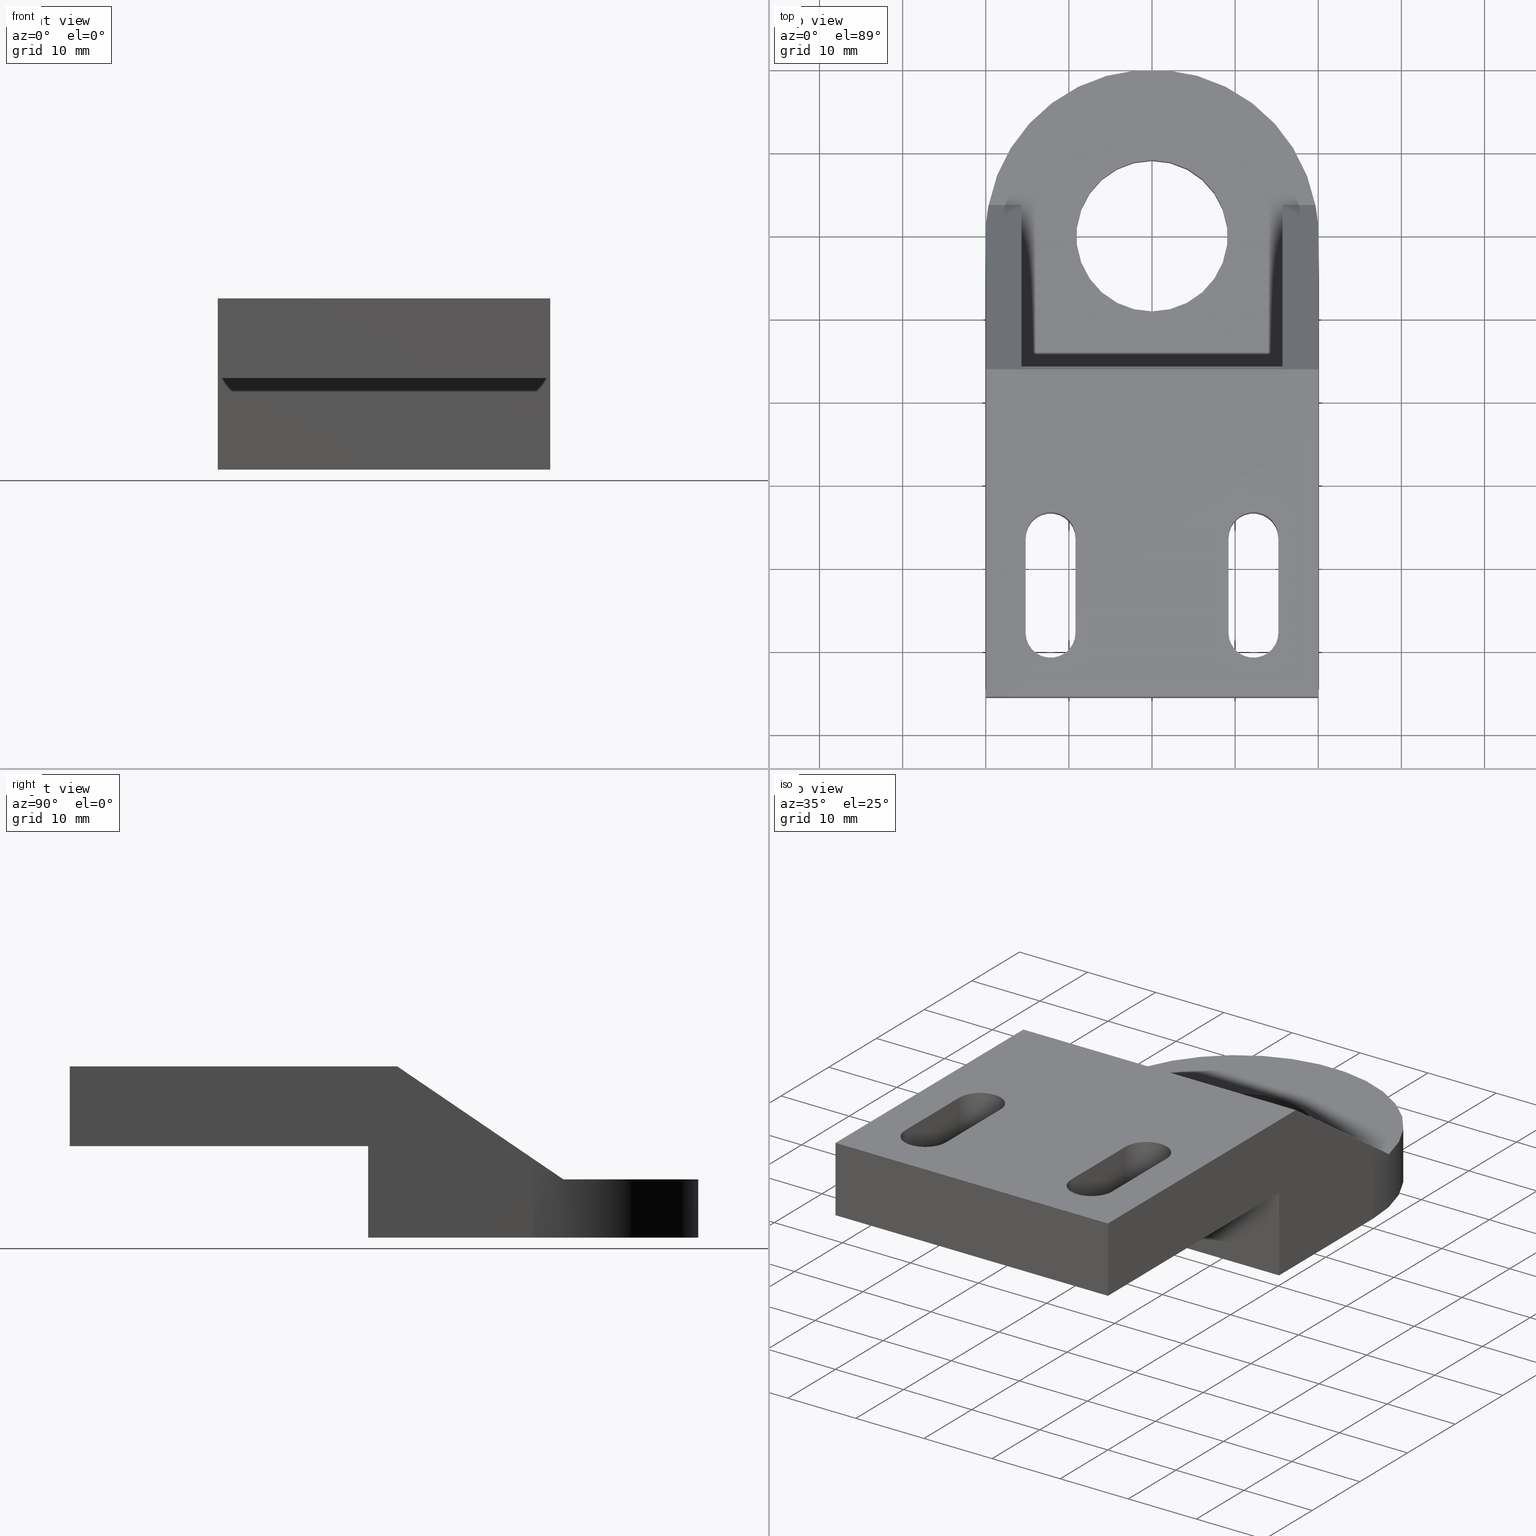
[diagram: canonical four-view strip — front | top / right | iso, engineering-drawing reading convention]
A machine part, canonical four-view strip (front | top / right | iso — engineering-drawing reading convention). The complete STEP part file that produces these views, byte-faithful:
ISO-10303-21;
HEADER;
/* Generated by software containing ST-Developer
 * from STEP Tools, Inc. (www.steptools.com) 
 */

FILE_DESCRIPTION(
/* description */ ('FERMAPORTA ASOLATO SENZA AGGANCIO'),
/* implementation_level */ '2;1');

FILE_NAME(
/* name */ 'C:\\Users\\Tecnico9\\Desktop\\CASYY0000001.stp',
/* time_stamp */ '2021-06-03T17:43:03+02:00',
/* author */ ('tecnico9'),
/* organization */ (''),
/* preprocessor_version */ 'ST-DEVELOPER v17.2',
/* originating_system */ 'Autodesk Inventor 2019',
/* authorisation */ '');

FILE_SCHEMA (('AUTOMOTIVE_DESIGN { 1 0 10303 214 3 1 1 }'));
ENDSEC;

DATA;
#10=MECHANICAL_DESIGN_GEOMETRIC_PRESENTATION_REPRESENTATION('',(#13),#743);
#11=SHAPE_REPRESENTATION_RELATIONSHIP('SRR','None',#750,#12);
#12=ADVANCED_BREP_SHAPE_REPRESENTATION('',(#14),#742);
#13=STYLED_ITEM('',(#759),#14);
#14=MANIFOLD_SOLID_BREP('None',#441);
#15=FACE_BOUND('',#68,.T.);
#16=FACE_BOUND('',#69,.T.);
#17=FACE_BOUND('',#71,.T.);
#18=FACE_BOUND('',#74,.T.);
#19=FACE_BOUND('',#75,.T.);
#20=FACE_BOUND('',#81,.T.);
#21=ELLIPSE('',#465,24.1859463324328,19.99999999992);
#22=ELLIPSE('',#467,24.1859463324328,19.99999999992);
#23=CIRCLE('',#464,19.99999999992);
#24=CIRCLE('',#466,19.99999999992);
#25=CIRCLE('',#470,2.99999999998818);
#26=CIRCLE('',#471,2.99999999998818);
#27=CIRCLE('',#472,2.99999999998818);
#28=CIRCLE('',#473,2.99999999998818);
#29=CIRCLE('',#475,9.09999999996353);
#30=CIRCLE('',#478,2.99999999998818);
#31=CIRCLE('',#479,2.99999999998818);
#32=CIRCLE('',#480,2.99999999998818);
#33=CIRCLE('',#481,2.99999999998818);
#34=CIRCLE('',#487,9.09999999996353);
#35=CYLINDRICAL_SURFACE('',#463,19.99999999992);
#36=CYLINDRICAL_SURFACE('',#488,9.09999999996353);
#37=CYLINDRICAL_SURFACE('',#489,2.99999999998818);
#38=CYLINDRICAL_SURFACE('',#491,2.99999999998818);
#39=CYLINDRICAL_SURFACE('',#493,2.99999999998818);
#40=CYLINDRICAL_SURFACE('',#495,2.99999999998818);
#41=FACE_OUTER_BOUND('',#63,.T.);
#42=FACE_OUTER_BOUND('',#64,.T.);
#43=FACE_OUTER_BOUND('',#65,.T.);
#44=FACE_OUTER_BOUND('',#66,.T.);
#45=FACE_OUTER_BOUND('',#67,.T.);
#46=FACE_OUTER_BOUND('',#70,.T.);
#47=FACE_OUTER_BOUND('',#72,.T.);
#48=FACE_OUTER_BOUND('',#73,.T.);
#49=FACE_OUTER_BOUND('',#76,.T.);
#50=FACE_OUTER_BOUND('',#77,.T.);
#51=FACE_OUTER_BOUND('',#78,.T.);
#52=FACE_OUTER_BOUND('',#79,.T.);
#53=FACE_OUTER_BOUND('',#80,.T.);
#54=FACE_OUTER_BOUND('',#82,.T.);
#55=FACE_OUTER_BOUND('',#83,.T.);
#56=FACE_OUTER_BOUND('',#84,.T.);
#57=FACE_OUTER_BOUND('',#85,.T.);
#58=FACE_OUTER_BOUND('',#86,.T.);
#59=FACE_OUTER_BOUND('',#87,.T.);
#60=FACE_OUTER_BOUND('',#88,.T.);
#61=FACE_OUTER_BOUND('',#89,.T.);
#62=FACE_OUTER_BOUND('',#90,.T.);
#63=EDGE_LOOP('',(#283,#284,#285,#286));
#64=EDGE_LOOP('',(#287,#288,#289,#290,#291,#292,#293));
#65=EDGE_LOOP('',(#294,#295,#296,#297,#298,#299));
#66=EDGE_LOOP('',(#300,#301,#302,#303,#304,#305,#306));
#67=EDGE_LOOP('',(#307,#308,#309,#310));
#68=EDGE_LOOP('',(#311,#312,#313,#314));
#69=EDGE_LOOP('',(#315,#316,#317,#318));
#70=EDGE_LOOP('',(#319,#320,#321,#322));
#71=EDGE_LOOP('',(#323));
#72=EDGE_LOOP('',(#324,#325,#326,#327));
#73=EDGE_LOOP('',(#328,#329,#330,#331));
#74=EDGE_LOOP('',(#332,#333,#334,#335));
#75=EDGE_LOOP('',(#336,#337,#338,#339));
#76=EDGE_LOOP('',(#340,#341,#342,#343,#344,#345,#346,#347,#348,#349));
#77=EDGE_LOOP('',(#350,#351,#352));
#78=EDGE_LOOP('',(#353,#354,#355,#356));
#79=EDGE_LOOP('',(#357,#358,#359));
#80=EDGE_LOOP('',(#360,#361,#362,#363,#364,#365));
#81=EDGE_LOOP('',(#366));
#82=EDGE_LOOP('',(#367,#368,#369,#370));
#83=EDGE_LOOP('',(#371,#372,#373,#374));
#84=EDGE_LOOP('',(#375,#376,#377,#378));
#85=EDGE_LOOP('',(#379,#380,#381,#382));
#86=EDGE_LOOP('',(#383,#384,#385,#386));
#87=EDGE_LOOP('',(#387,#388,#389,#390));
#88=EDGE_LOOP('',(#391,#392,#393,#394));
#89=EDGE_LOOP('',(#395,#396,#397,#398));
#90=EDGE_LOOP('',(#399,#400,#401,#402));
#91=LINE('',#621,#137);
#92=LINE('',#623,#138);
#93=LINE('',#625,#139);
#94=LINE('',#626,#140);
#95=LINE('',#630,#141);
#96=LINE('',#632,#142);
#97=LINE('',#634,#143);
#98=LINE('',#635,#144);
#99=LINE('',#637,#145);
#100=LINE('',#638,#146);
#101=LINE('',#643,#147);
#102=LINE('',#651,#148);
#103=LINE('',#652,#149);
#104=LINE('',#654,#150);
#105=LINE('',#656,#151);
#106=LINE('',#657,#152);
#107=LINE('',#659,#153);
#108=LINE('',#664,#154);
#109=LINE('',#667,#155);
#110=LINE('',#672,#156);
#111=LINE('',#675,#157);
#112=LINE('',#677,#158);
#113=LINE('',#681,#159);
#114=LINE('',#687,#160);
#115=LINE('',#690,#161);
#116=LINE('',#695,#162);
#117=LINE('',#698,#163);
#118=LINE('',#701,#164);
#119=LINE('',#703,#165);
#120=LINE('',#705,#166);
#121=LINE('',#707,#167);
#122=LINE('',#708,#168);
#123=LINE('',#711,#169);
#124=LINE('',#712,#170);
#125=LINE('',#715,#171);
#126=LINE('',#716,#172);
#127=LINE('',#718,#173);
#128=LINE('',#723,#174);
#129=LINE('',#725,#175);
#130=LINE('',#726,#176);
#131=LINE('',#728,#177);
#132=LINE('',#730,#178);
#133=LINE('',#733,#179);
#134=LINE('',#734,#180);
#135=LINE('',#736,#181);
#136=LINE('',#738,#182);
#137=VECTOR('',#501,9.59999999996126);
#138=VECTOR('',#502,39.9999999998399);
#139=VECTOR('',#503,9.59999999996126);
#140=VECTOR('',#504,39.9999999998399);
#141=VECTOR('',#507,19.7999999999211);
#142=VECTOR('',#508,9.51599999996129);
#143=VECTOR('',#509,19.7115462609332);
#144=VECTOR('',#510,39.3999999998423);
#145=VECTOR('',#511,35.8999999998564);
#146=VECTOR('',#512,10.999999999956);
#147=VECTOR('',#517,9.51599999996123);
#148=VECTOR('',#526,39.3999999998423);
#149=VECTOR('',#527,19.7115462609332);
#150=VECTOR('',#528,19.7999999999211);
#151=VECTOR('',#529,10.999999999956);
#152=VECTOR('',#530,35.8999999998564);
#153=VECTOR('',#533,39.9999999998399);
#154=VECTOR('',#536,11.4999999999827);
#155=VECTOR('',#539,11.4999999999827);
#156=VECTOR('',#542,11.4999999999827);
#157=VECTOR('',#545,11.4999999999827);
#158=VECTOR('',#548,39.9999999998399);
#159=VECTOR('',#553,39.9999999998399);
#160=VECTOR('',#558,11.4999999999827);
#161=VECTOR('',#561,11.4999999999827);
#162=VECTOR('',#564,11.4999999999827);
#163=VECTOR('',#567,11.4999999999827);
#164=VECTOR('',#570,3.95477041329559);
#165=VECTOR('',#571,23.8231571374463);
#166=VECTOR('',#572,31.399999999875);
#167=VECTOR('',#573,23.8231571374463);
#168=VECTOR('',#574,3.9547704132965);
#169=VECTOR('',#577,13.3959999999465);
#170=VECTOR('',#578,19.6999999999212);
#171=VECTOR('',#581,13.3959999999465);
#172=VECTOR('',#582,31.399999999875);
#173=VECTOR('',#585,19.6999999999212);
#174=VECTOR('',#592,9.09999999996353);
#175=VECTOR('',#595,9.59999999996126);
#176=VECTOR('',#596,9.59999999996126);
#177=VECTOR('',#599,9.59999999996126);
#178=VECTOR('',#602,9.59999999996126);
#179=VECTOR('',#607,9.59999999996126);
#180=VECTOR('',#608,9.59999999996126);
#181=VECTOR('',#611,9.59999999996126);
#182=VECTOR('',#614,9.59999999996126);
#183=VERTEX_POINT('',#619);
#184=VERTEX_POINT('',#620);
#185=VERTEX_POINT('',#622);
#186=VERTEX_POINT('',#624);
#187=VERTEX_POINT('',#628);
#188=VERTEX_POINT('',#629);
#189=VERTEX_POINT('',#631);
#190=VERTEX_POINT('',#633);
#191=VERTEX_POINT('',#636);
#192=VERTEX_POINT('',#640);
#193=VERTEX_POINT('',#642);
#194=VERTEX_POINT('',#644);
#195=VERTEX_POINT('',#646);
#196=VERTEX_POINT('',#650);
#197=VERTEX_POINT('',#653);
#198=VERTEX_POINT('',#655);
#199=VERTEX_POINT('',#660);
#200=VERTEX_POINT('',#661);
#201=VERTEX_POINT('',#663);
#202=VERTEX_POINT('',#665);
#203=VERTEX_POINT('',#668);
#204=VERTEX_POINT('',#669);
#205=VERTEX_POINT('',#671);
#206=VERTEX_POINT('',#673);
#207=VERTEX_POINT('',#678);
#208=VERTEX_POINT('',#683);
#209=VERTEX_POINT('',#684);
#210=VERTEX_POINT('',#686);
#211=VERTEX_POINT('',#688);
#212=VERTEX_POINT('',#691);
#213=VERTEX_POINT('',#692);
#214=VERTEX_POINT('',#694);
#215=VERTEX_POINT('',#696);
#216=VERTEX_POINT('',#700);
#217=VERTEX_POINT('',#702);
#218=VERTEX_POINT('',#704);
#219=VERTEX_POINT('',#706);
#220=VERTEX_POINT('',#710);
#221=VERTEX_POINT('',#714);
#222=VERTEX_POINT('',#720);
#223=EDGE_CURVE('',#183,#184,#91,.T.);
#224=EDGE_CURVE('',#184,#185,#92,.T.);
#225=EDGE_CURVE('',#186,#185,#93,.T.);
#226=EDGE_CURVE('',#183,#186,#94,.T.);
#227=EDGE_CURVE('',#187,#188,#95,.T.);
#228=EDGE_CURVE('',#189,#188,#96,.T.);
#229=EDGE_CURVE('',#190,#189,#97,.T.);
#230=EDGE_CURVE('',#186,#190,#98,.T.);
#231=EDGE_CURVE('',#185,#191,#99,.T.);
#232=EDGE_CURVE('',#187,#191,#100,.T.);
#233=EDGE_CURVE('',#188,#192,#23,.T.);
#234=EDGE_CURVE('',#193,#192,#101,.T.);
#235=EDGE_CURVE('',#194,#193,#21,.T.);
#236=EDGE_CURVE('',#195,#194,#24,.T.);
#237=EDGE_CURVE('',#189,#195,#22,.T.);
#238=EDGE_CURVE('',#196,#183,#102,.T.);
#239=EDGE_CURVE('',#193,#196,#103,.T.);
#240=EDGE_CURVE('',#192,#197,#104,.T.);
#241=EDGE_CURVE('',#198,#197,#105,.T.);
#242=EDGE_CURVE('',#184,#198,#106,.T.);
#243=EDGE_CURVE('',#196,#190,#107,.T.);
#244=EDGE_CURVE('',#199,#200,#25,.T.);
#245=EDGE_CURVE('',#201,#199,#108,.T.);
#246=EDGE_CURVE('',#202,#201,#26,.T.);
#247=EDGE_CURVE('',#200,#202,#109,.T.);
#248=EDGE_CURVE('',#203,#204,#27,.T.);
#249=EDGE_CURVE('',#205,#203,#110,.T.);
#250=EDGE_CURVE('',#206,#205,#28,.T.);
#251=EDGE_CURVE('',#204,#206,#111,.T.);
#252=EDGE_CURVE('',#197,#187,#112,.T.);
#253=EDGE_CURVE('',#207,#207,#29,.T.);
#254=EDGE_CURVE('',#198,#191,#113,.T.);
#255=EDGE_CURVE('',#208,#209,#30,.T.);
#256=EDGE_CURVE('',#209,#210,#114,.T.);
#257=EDGE_CURVE('',#210,#211,#31,.T.);
#258=EDGE_CURVE('',#208,#211,#115,.T.);
#259=EDGE_CURVE('',#212,#213,#32,.T.);
#260=EDGE_CURVE('',#213,#214,#116,.T.);
#261=EDGE_CURVE('',#214,#215,#33,.T.);
#262=EDGE_CURVE('',#212,#215,#117,.T.);
#263=EDGE_CURVE('',#216,#195,#118,.T.);
#264=EDGE_CURVE('',#216,#217,#119,.T.);
#265=EDGE_CURVE('',#218,#217,#120,.T.);
#266=EDGE_CURVE('',#219,#218,#121,.T.);
#267=EDGE_CURVE('',#194,#219,#122,.T.);
#268=EDGE_CURVE('',#218,#220,#123,.T.);
#269=EDGE_CURVE('',#219,#220,#124,.T.);
#270=EDGE_CURVE('',#217,#221,#125,.T.);
#271=EDGE_CURVE('',#220,#221,#126,.T.);
#272=EDGE_CURVE('',#221,#216,#127,.T.);
#273=EDGE_CURVE('',#222,#222,#34,.T.);
#274=EDGE_CURVE('',#207,#222,#128,.T.);
#275=EDGE_CURVE('',#200,#209,#129,.T.);
#276=EDGE_CURVE('',#199,#208,#130,.T.);
#277=EDGE_CURVE('',#202,#210,#131,.T.);
#278=EDGE_CURVE('',#201,#211,#132,.T.);
#279=EDGE_CURVE('',#204,#213,#133,.T.);
#280=EDGE_CURVE('',#203,#212,#134,.T.);
#281=EDGE_CURVE('',#206,#214,#135,.T.);
#282=EDGE_CURVE('',#205,#215,#136,.T.);
#283=ORIENTED_EDGE('',*,*,#223,.T.);
#284=ORIENTED_EDGE('',*,*,#224,.T.);
#285=ORIENTED_EDGE('',*,*,#225,.F.);
#286=ORIENTED_EDGE('',*,*,#226,.F.);
#287=ORIENTED_EDGE('',*,*,#227,.T.);
#288=ORIENTED_EDGE('',*,*,#228,.F.);
#289=ORIENTED_EDGE('',*,*,#229,.F.);
#290=ORIENTED_EDGE('',*,*,#230,.F.);
#291=ORIENTED_EDGE('',*,*,#225,.T.);
#292=ORIENTED_EDGE('',*,*,#231,.T.);
#293=ORIENTED_EDGE('',*,*,#232,.F.);
#294=ORIENTED_EDGE('',*,*,#228,.T.);
#295=ORIENTED_EDGE('',*,*,#233,.T.);
#296=ORIENTED_EDGE('',*,*,#234,.F.);
#297=ORIENTED_EDGE('',*,*,#235,.F.);
#298=ORIENTED_EDGE('',*,*,#236,.F.);
#299=ORIENTED_EDGE('',*,*,#237,.F.);
#300=ORIENTED_EDGE('',*,*,#238,.F.);
#301=ORIENTED_EDGE('',*,*,#239,.F.);
#302=ORIENTED_EDGE('',*,*,#234,.T.);
#303=ORIENTED_EDGE('',*,*,#240,.T.);
#304=ORIENTED_EDGE('',*,*,#241,.F.);
#305=ORIENTED_EDGE('',*,*,#242,.F.);
#306=ORIENTED_EDGE('',*,*,#223,.F.);
#307=ORIENTED_EDGE('',*,*,#226,.T.);
#308=ORIENTED_EDGE('',*,*,#230,.T.);
#309=ORIENTED_EDGE('',*,*,#243,.F.);
#310=ORIENTED_EDGE('',*,*,#238,.T.);
#311=ORIENTED_EDGE('',*,*,#244,.F.);
#312=ORIENTED_EDGE('',*,*,#245,.F.);
#313=ORIENTED_EDGE('',*,*,#246,.F.);
#314=ORIENTED_EDGE('',*,*,#247,.F.);
#315=ORIENTED_EDGE('',*,*,#248,.F.);
#316=ORIENTED_EDGE('',*,*,#249,.F.);
#317=ORIENTED_EDGE('',*,*,#250,.F.);
#318=ORIENTED_EDGE('',*,*,#251,.F.);
#319=ORIENTED_EDGE('',*,*,#227,.F.);
#320=ORIENTED_EDGE('',*,*,#252,.F.);
#321=ORIENTED_EDGE('',*,*,#240,.F.);
#322=ORIENTED_EDGE('',*,*,#233,.F.);
#323=ORIENTED_EDGE('',*,*,#253,.F.);
#324=ORIENTED_EDGE('',*,*,#241,.T.);
#325=ORIENTED_EDGE('',*,*,#252,.T.);
#326=ORIENTED_EDGE('',*,*,#232,.T.);
#327=ORIENTED_EDGE('',*,*,#254,.F.);
#328=ORIENTED_EDGE('',*,*,#242,.T.);
#329=ORIENTED_EDGE('',*,*,#254,.T.);
#330=ORIENTED_EDGE('',*,*,#231,.F.);
#331=ORIENTED_EDGE('',*,*,#224,.F.);
#332=ORIENTED_EDGE('',*,*,#255,.T.);
#333=ORIENTED_EDGE('',*,*,#256,.T.);
#334=ORIENTED_EDGE('',*,*,#257,.T.);
#335=ORIENTED_EDGE('',*,*,#258,.F.);
#336=ORIENTED_EDGE('',*,*,#259,.T.);
#337=ORIENTED_EDGE('',*,*,#260,.T.);
#338=ORIENTED_EDGE('',*,*,#261,.T.);
#339=ORIENTED_EDGE('',*,*,#262,.F.);
#340=ORIENTED_EDGE('',*,*,#243,.T.);
#341=ORIENTED_EDGE('',*,*,#229,.T.);
#342=ORIENTED_EDGE('',*,*,#237,.T.);
#343=ORIENTED_EDGE('',*,*,#263,.F.);
#344=ORIENTED_EDGE('',*,*,#264,.T.);
#345=ORIENTED_EDGE('',*,*,#265,.F.);
#346=ORIENTED_EDGE('',*,*,#266,.F.);
#347=ORIENTED_EDGE('',*,*,#267,.F.);
#348=ORIENTED_EDGE('',*,*,#235,.T.);
#349=ORIENTED_EDGE('',*,*,#239,.T.);
#350=ORIENTED_EDGE('',*,*,#266,.T.);
#351=ORIENTED_EDGE('',*,*,#268,.T.);
#352=ORIENTED_EDGE('',*,*,#269,.F.);
#353=ORIENTED_EDGE('',*,*,#268,.F.);
#354=ORIENTED_EDGE('',*,*,#265,.T.);
#355=ORIENTED_EDGE('',*,*,#270,.T.);
#356=ORIENTED_EDGE('',*,*,#271,.F.);
#357=ORIENTED_EDGE('',*,*,#270,.F.);
#358=ORIENTED_EDGE('',*,*,#264,.F.);
#359=ORIENTED_EDGE('',*,*,#272,.F.);
#360=ORIENTED_EDGE('',*,*,#267,.T.);
#361=ORIENTED_EDGE('',*,*,#269,.T.);
#362=ORIENTED_EDGE('',*,*,#271,.T.);
#363=ORIENTED_EDGE('',*,*,#272,.T.);
#364=ORIENTED_EDGE('',*,*,#263,.T.);
#365=ORIENTED_EDGE('',*,*,#236,.T.);
#366=ORIENTED_EDGE('',*,*,#273,.F.);
#367=ORIENTED_EDGE('',*,*,#253,.T.);
#368=ORIENTED_EDGE('',*,*,#274,.T.);
#369=ORIENTED_EDGE('',*,*,#273,.T.);
#370=ORIENTED_EDGE('',*,*,#274,.F.);
#371=ORIENTED_EDGE('',*,*,#275,.T.);
#372=ORIENTED_EDGE('',*,*,#255,.F.);
#373=ORIENTED_EDGE('',*,*,#276,.F.);
#374=ORIENTED_EDGE('',*,*,#244,.T.);
#375=ORIENTED_EDGE('',*,*,#247,.T.);
#376=ORIENTED_EDGE('',*,*,#277,.T.);
#377=ORIENTED_EDGE('',*,*,#256,.F.);
#378=ORIENTED_EDGE('',*,*,#275,.F.);
#379=ORIENTED_EDGE('',*,*,#246,.T.);
#380=ORIENTED_EDGE('',*,*,#278,.T.);
#381=ORIENTED_EDGE('',*,*,#257,.F.);
#382=ORIENTED_EDGE('',*,*,#277,.F.);
#383=ORIENTED_EDGE('',*,*,#276,.T.);
#384=ORIENTED_EDGE('',*,*,#258,.T.);
#385=ORIENTED_EDGE('',*,*,#278,.F.);
#386=ORIENTED_EDGE('',*,*,#245,.T.);
#387=ORIENTED_EDGE('',*,*,#279,.T.);
#388=ORIENTED_EDGE('',*,*,#259,.F.);
#389=ORIENTED_EDGE('',*,*,#280,.F.);
#390=ORIENTED_EDGE('',*,*,#248,.T.);
#391=ORIENTED_EDGE('',*,*,#251,.T.);
#392=ORIENTED_EDGE('',*,*,#281,.T.);
#393=ORIENTED_EDGE('',*,*,#260,.F.);
#394=ORIENTED_EDGE('',*,*,#279,.F.);
#395=ORIENTED_EDGE('',*,*,#250,.T.);
#396=ORIENTED_EDGE('',*,*,#282,.T.);
#397=ORIENTED_EDGE('',*,*,#261,.F.);
#398=ORIENTED_EDGE('',*,*,#281,.F.);
#399=ORIENTED_EDGE('',*,*,#280,.T.);
#400=ORIENTED_EDGE('',*,*,#262,.T.);
#401=ORIENTED_EDGE('',*,*,#282,.F.);
#402=ORIENTED_EDGE('',*,*,#249,.T.);
#403=PLANE('',#461);
#404=PLANE('',#462);
#405=PLANE('',#468);
#406=PLANE('',#469);
#407=PLANE('',#474);
#408=PLANE('',#476);
#409=PLANE('',#477);
#410=PLANE('',#482);
#411=PLANE('',#483);
#412=PLANE('',#484);
#413=PLANE('',#485);
#414=PLANE('',#486);
#415=PLANE('',#490);
#416=PLANE('',#492);
#417=PLANE('',#494);
#418=PLANE('',#496);
#419=ADVANCED_FACE('',(#41),#403,.F.);
#420=ADVANCED_FACE('',(#42),#404,.F.);
#421=ADVANCED_FACE('',(#43),#35,.T.);
#422=ADVANCED_FACE('',(#44),#405,.F.);
#423=ADVANCED_FACE('',(#45,#15,#16),#406,.T.);
#424=ADVANCED_FACE('',(#46,#17),#407,.F.);
#425=ADVANCED_FACE('',(#47),#408,.T.);
#426=ADVANCED_FACE('',(#48,#18,#19),#409,.T.);
#427=ADVANCED_FACE('',(#49),#410,.T.);
#428=ADVANCED_FACE('',(#50),#411,.T.);
#429=ADVANCED_FACE('',(#51),#412,.T.);
#430=ADVANCED_FACE('',(#52),#413,.T.);
#431=ADVANCED_FACE('',(#53,#20),#414,.T.);
#432=ADVANCED_FACE('',(#54),#36,.F.);
#433=ADVANCED_FACE('',(#55),#37,.F.);
#434=ADVANCED_FACE('',(#56),#415,.T.);
#435=ADVANCED_FACE('',(#57),#38,.F.);
#436=ADVANCED_FACE('',(#58),#416,.T.);
#437=ADVANCED_FACE('',(#59),#39,.F.);
#438=ADVANCED_FACE('',(#60),#417,.T.);
#439=ADVANCED_FACE('',(#61),#40,.F.);
#440=ADVANCED_FACE('',(#62),#418,.T.);
#441=CLOSED_SHELL('',(#419,#420,#421,#422,#423,#424,#425,#426,#427,#428,
#429,#430,#431,#432,#433,#434,#435,#436,#437,#438,#439,#440));
#442=DERIVED_UNIT_ELEMENT(#444,1.);
#443=DERIVED_UNIT_ELEMENT(#745,3.);
#444=(
MASS_UNIT()
NAMED_UNIT(*)
SI_UNIT($,.GRAM.)
);
#445=DERIVED_UNIT((#442,#443));
#446=MEASURE_REPRESENTATION_ITEM('density measure',
POSITIVE_RATIO_MEASURE(1.),#445);
#447=PROPERTY_DEFINITION_REPRESENTATION(#452,#449);
#448=PROPERTY_DEFINITION_REPRESENTATION(#453,#450);
#449=REPRESENTATION('material name',(#451),#742);
#450=REPRESENTATION('density',(#446),#742);
#451=DESCRIPTIVE_REPRESENTATION_ITEM('Generico','Generico');
#452=PROPERTY_DEFINITION('material property','material name',#752);
#453=PROPERTY_DEFINITION('material property','density of part',#752);
#454=DATE_TIME_ROLE('creation_date');
#455=APPLIED_DATE_AND_TIME_ASSIGNMENT(#456,#454,(#752));
#456=DATE_AND_TIME(#457,#458);
#457=CALENDAR_DATE(2012,17,1);
#458=LOCAL_TIME(10,5,26.,#459);
#459=COORDINATED_UNIVERSAL_TIME_OFFSET(0,0,.BEHIND.);
#460=AXIS2_PLACEMENT_3D('placement',#617,#497,#498);
#461=AXIS2_PLACEMENT_3D('',#618,#499,#500);
#462=AXIS2_PLACEMENT_3D('',#627,#505,#506);
#463=AXIS2_PLACEMENT_3D('',#639,#513,#514);
#464=AXIS2_PLACEMENT_3D('',#641,#515,#516);
#465=AXIS2_PLACEMENT_3D('',#645,#518,#519);
#466=AXIS2_PLACEMENT_3D('',#647,#520,#521);
#467=AXIS2_PLACEMENT_3D('',#648,#522,#523);
#468=AXIS2_PLACEMENT_3D('',#649,#524,#525);
#469=AXIS2_PLACEMENT_3D('',#658,#531,#532);
#470=AXIS2_PLACEMENT_3D('',#662,#534,#535);
#471=AXIS2_PLACEMENT_3D('',#666,#537,#538);
#472=AXIS2_PLACEMENT_3D('',#670,#540,#541);
#473=AXIS2_PLACEMENT_3D('',#674,#543,#544);
#474=AXIS2_PLACEMENT_3D('',#676,#546,#547);
#475=AXIS2_PLACEMENT_3D('',#679,#549,#550);
#476=AXIS2_PLACEMENT_3D('',#680,#551,#552);
#477=AXIS2_PLACEMENT_3D('',#682,#554,#555);
#478=AXIS2_PLACEMENT_3D('',#685,#556,#557);
#479=AXIS2_PLACEMENT_3D('',#689,#559,#560);
#480=AXIS2_PLACEMENT_3D('',#693,#562,#563);
#481=AXIS2_PLACEMENT_3D('',#697,#565,#566);
#482=AXIS2_PLACEMENT_3D('',#699,#568,#569);
#483=AXIS2_PLACEMENT_3D('',#709,#575,#576);
#484=AXIS2_PLACEMENT_3D('',#713,#579,#580);
#485=AXIS2_PLACEMENT_3D('',#717,#583,#584);
#486=AXIS2_PLACEMENT_3D('',#719,#586,#587);
#487=AXIS2_PLACEMENT_3D('',#721,#588,#589);
#488=AXIS2_PLACEMENT_3D('',#722,#590,#591);
#489=AXIS2_PLACEMENT_3D('',#724,#593,#594);
#490=AXIS2_PLACEMENT_3D('',#727,#597,#598);
#491=AXIS2_PLACEMENT_3D('',#729,#600,#601);
#492=AXIS2_PLACEMENT_3D('',#731,#603,#604);
#493=AXIS2_PLACEMENT_3D('',#732,#605,#606);
#494=AXIS2_PLACEMENT_3D('',#735,#609,#610);
#495=AXIS2_PLACEMENT_3D('',#737,#612,#613);
#496=AXIS2_PLACEMENT_3D('',#739,#615,#616);
#497=DIRECTION('axis',(0.,0.,1.));
#498=DIRECTION('refdir',(1.,0.,0.));
#499=DIRECTION('center_axis',(0.,1.,0.));
#500=DIRECTION('ref_axis',(0.,0.,1.));
#501=DIRECTION('',(0.,0.,-1.));
#502=DIRECTION('',(1.,0.,0.));
#503=DIRECTION('',(0.,0.,-1.));
#504=DIRECTION('',(1.,0.,0.));
#505=DIRECTION('center_axis',(-1.,0.,0.));
#506=DIRECTION('ref_axis',(0.,0.,1.));
#507=DIRECTION('',(0.,1.,0.));
#508=DIRECTION('',(0.,0.,-1.));
#509=DIRECTION('',(0.,0.826926502069527,-0.562310021407281));
#510=DIRECTION('',(0.,1.,0.));
#511=DIRECTION('',(0.,1.,0.));
#512=DIRECTION('',(0.,0.,1.));
#513=DIRECTION('center_axis',(0.,0.,1.));
#514=DIRECTION('ref_axis',(1.,0.,0.));
#515=DIRECTION('center_axis',(0.,0.,1.));
#516=DIRECTION('ref_axis',(1.,0.,0.));
#517=DIRECTION('',(0.,0.,-1.));
#518=DIRECTION('center_axis',(0.,0.562310021407283,0.826926502069526));
#519=DIRECTION('ref_axis',(0.,0.826926502069526,-0.562310021407283));
#520=DIRECTION('center_axis',(0.,0.,1.));
#521=DIRECTION('ref_axis',(1.,0.,0.));
#522=DIRECTION('center_axis',(0.,0.562310021407283,0.826926502069526));
#523=DIRECTION('ref_axis',(0.,0.826926502069526,-0.562310021407283));
#524=DIRECTION('center_axis',(1.,0.,0.));
#525=DIRECTION('ref_axis',(0.,0.,-1.));
#526=DIRECTION('',(0.,-1.,0.));
#527=DIRECTION('',(0.,-0.826926502069526,0.562310021407283));
#528=DIRECTION('',(0.,-1.,0.));
#529=DIRECTION('',(0.,0.,-1.));
#530=DIRECTION('',(0.,1.,0.));
#531=DIRECTION('center_axis',(0.,0.,1.));
#532=DIRECTION('ref_axis',(1.,0.,0.));
#533=DIRECTION('',(1.,0.,0.));
#534=DIRECTION('center_axis',(0.,0.,1.));
#535=DIRECTION('ref_axis',(1.,0.,0.));
#536=DIRECTION('',(0.,-1.,0.));
#537=DIRECTION('center_axis',(0.,0.,1.));
#538=DIRECTION('ref_axis',(1.,0.,0.));
#539=DIRECTION('',(0.,1.,0.));
#540=DIRECTION('center_axis',(0.,0.,1.));
#541=DIRECTION('ref_axis',(1.,0.,0.));
#542=DIRECTION('',(0.,-1.,0.));
#543=DIRECTION('center_axis',(0.,0.,1.));
#544=DIRECTION('ref_axis',(1.,0.,0.));
#545=DIRECTION('',(0.,1.,0.));
#546=DIRECTION('center_axis',(0.,0.,1.));
#547=DIRECTION('ref_axis',(1.,0.,0.));
#548=DIRECTION('',(1.,0.,0.));
#549=DIRECTION('center_axis',(0.,0.,-1.));
#550=DIRECTION('ref_axis',(0.,-1.,0.));
#551=DIRECTION('center_axis',(0.,-1.,0.));
#552=DIRECTION('ref_axis',(0.,0.,-1.));
#553=DIRECTION('',(1.,0.,0.));
#554=DIRECTION('center_axis',(0.,0.,-1.));
#555=DIRECTION('ref_axis',(-1.,0.,0.));
#556=DIRECTION('center_axis',(0.,0.,1.));
#557=DIRECTION('ref_axis',(1.,0.,0.));
#558=DIRECTION('',(0.,1.,0.));
#559=DIRECTION('center_axis',(0.,0.,1.));
#560=DIRECTION('ref_axis',(1.,0.,0.));
#561=DIRECTION('',(0.,1.,0.));
#562=DIRECTION('center_axis',(0.,0.,1.));
#563=DIRECTION('ref_axis',(1.,0.,0.));
#564=DIRECTION('',(0.,1.,0.));
#565=DIRECTION('center_axis',(0.,0.,1.));
#566=DIRECTION('ref_axis',(1.,0.,0.));
#567=DIRECTION('',(0.,1.,0.));
#568=DIRECTION('center_axis',(0.,0.562310021407283,0.826926502069526));
#569=DIRECTION('ref_axis',(1.,0.,0.));
#570=DIRECTION('',(1.,0.,0.));
#571=DIRECTION('',(0.,-0.826926502069527,0.562310021407281));
#572=DIRECTION('',(1.,0.,0.));
#573=DIRECTION('',(0.,-0.826926502069527,0.562310021407281));
#574=DIRECTION('',(1.,0.,0.));
#575=DIRECTION('center_axis',(1.,0.,0.));
#576=DIRECTION('ref_axis',(0.,0.,-1.));
#577=DIRECTION('',(0.,0.,-1.));
#578=DIRECTION('',(0.,-1.,0.));
#579=DIRECTION('center_axis',(0.,1.,0.));
#580=DIRECTION('ref_axis',(0.,0.,1.));
#581=DIRECTION('',(0.,0.,-1.));
#582=DIRECTION('',(1.,0.,0.));
#583=DIRECTION('center_axis',(-1.,0.,0.));
#584=DIRECTION('ref_axis',(0.,0.,1.));
#585=DIRECTION('',(0.,1.,0.));
#586=DIRECTION('center_axis',(0.,0.,1.));
#587=DIRECTION('ref_axis',(1.,0.,0.));
#588=DIRECTION('center_axis',(0.,0.,1.));
#589=DIRECTION('ref_axis',(0.,-1.,0.));
#590=DIRECTION('center_axis',(0.,0.,1.));
#591=DIRECTION('ref_axis',(0.,-1.,0.));
#592=DIRECTION('',(0.,0.,1.));
#593=DIRECTION('center_axis',(0.,0.,1.));
#594=DIRECTION('ref_axis',(-1.,0.,0.));
#595=DIRECTION('',(0.,0.,-1.));
#596=DIRECTION('',(0.,0.,-1.));
#597=DIRECTION('center_axis',(-1.,0.,0.));
#598=DIRECTION('ref_axis',(0.,0.,1.));
#599=DIRECTION('',(0.,0.,-1.));
#600=DIRECTION('center_axis',(0.,0.,1.));
#601=DIRECTION('ref_axis',(1.,0.,0.));
#602=DIRECTION('',(0.,0.,-1.));
#603=DIRECTION('center_axis',(1.,0.,0.));
#604=DIRECTION('ref_axis',(0.,0.,-1.));
#605=DIRECTION('center_axis',(0.,0.,1.));
#606=DIRECTION('ref_axis',(-1.,0.,0.));
#607=DIRECTION('',(0.,0.,-1.));
#608=DIRECTION('',(0.,0.,-1.));
#609=DIRECTION('center_axis',(-1.,0.,0.));
#610=DIRECTION('ref_axis',(0.,0.,1.));
#611=DIRECTION('',(0.,0.,-1.));
#612=DIRECTION('center_axis',(0.,0.,1.));
#613=DIRECTION('ref_axis',(1.,0.,0.));
#614=DIRECTION('',(0.,0.,-1.));
#615=DIRECTION('center_axis',(1.,0.,0.));
#616=DIRECTION('ref_axis',(0.,0.,-1.));
#617=CARTESIAN_POINT('',(0.,0.,0.));
#618=CARTESIAN_POINT('Origin',(-19.99999999992,-55.6999999997775,20.5999999999172));
#619=CARTESIAN_POINT('',(-19.99999999992,-55.6999999997775,20.5999999999172));
#620=CARTESIAN_POINT('',(-19.99999999992,-55.6999999997775,10.999999999956));
#621=CARTESIAN_POINT('',(-19.99999999992,-55.6999999997775,20.5999999999172));
#622=CARTESIAN_POINT('',(19.99999999992,-55.6999999997775,10.999999999956));
#623=CARTESIAN_POINT('',(-19.99999999992,-55.6999999997775,10.999999999956));
#624=CARTESIAN_POINT('',(19.99999999992,-55.6999999997775,20.5999999999172));
#625=CARTESIAN_POINT('',(19.99999999992,-55.6999999997775,20.5999999999172));
#626=CARTESIAN_POINT('',(-19.99999999992,-55.6999999997775,20.5999999999172));
#627=CARTESIAN_POINT('Origin',(19.99999999992,-55.6999999997775,20.5999999999172));
#628=CARTESIAN_POINT('',(19.99999999992,-19.7999999999211,0.));
#629=CARTESIAN_POINT('',(19.99999999992,0.,0.));
#630=CARTESIAN_POINT('',(19.99999999992,-19.7999999999211,0.));
#631=CARTESIAN_POINT('',(19.99999999992,0.,9.51599999996129));
#632=CARTESIAN_POINT('',(19.99999999992,0.,9.51599999996129));
#633=CARTESIAN_POINT('',(19.99999999992,-16.2999999999351,20.5999999999172));
#634=CARTESIAN_POINT('',(19.99999999992,-16.2999999999351,20.5999999999172));
#635=CARTESIAN_POINT('',(19.99999999992,-55.6999999997775,20.5999999999172));
#636=CARTESIAN_POINT('',(19.99999999992,-19.7999999999211,10.999999999956));
#637=CARTESIAN_POINT('',(19.99999999992,-55.6999999997775,10.999999999956));
#638=CARTESIAN_POINT('',(19.99999999992,-19.7999999999211,0.));
#639=CARTESIAN_POINT('Origin',(0.,0.,20.5999999999172));
#640=CARTESIAN_POINT('',(-19.99999999992,0.,0.));
#641=CARTESIAN_POINT('Origin',(0.,0.,0.));
#642=CARTESIAN_POINT('',(-19.99999999992,0.,9.51599999996123));
#643=CARTESIAN_POINT('',(-19.99999999992,0.,9.51599999996123));
#644=CARTESIAN_POINT('',(-19.6547704132336,3.69999999998481,6.99999999997154));
#645=CARTESIAN_POINT('Origin',(0.,0.,9.51599999996129));
#646=CARTESIAN_POINT('',(19.6547704132336,3.69999999998481,6.99999999997154));
#647=CARTESIAN_POINT('Origin',(0.,0.,6.99999999997154));
#648=CARTESIAN_POINT('Origin',(0.,0.,9.51599999996129));
#649=CARTESIAN_POINT('Origin',(-19.99999999992,0.,20.5999999999172));
#650=CARTESIAN_POINT('',(-19.99999999992,-16.2999999999351,20.5999999999172));
#651=CARTESIAN_POINT('',(-19.99999999992,-16.2999999999351,20.5999999999172));
#652=CARTESIAN_POINT('',(-19.99999999992,2.80835402188187E-16,9.51599999996123));
#653=CARTESIAN_POINT('',(-19.99999999992,-19.7999999999211,0.));
#654=CARTESIAN_POINT('',(-19.99999999992,0.,0.));
#655=CARTESIAN_POINT('',(-19.99999999992,-19.7999999999211,10.999999999956));
#656=CARTESIAN_POINT('',(-19.99999999992,-19.7999999999211,10.999999999956));
#657=CARTESIAN_POINT('',(-19.99999999992,-55.6999999997775,10.999999999956));
#658=CARTESIAN_POINT('Origin',(-24.0000047436861,-63.2700047436274,20.5999999999172));
#659=CARTESIAN_POINT('',(-19.99999999992,-16.2999999999351,20.5999999999172));
#660=CARTESIAN_POINT('',(9.19999999996343,-47.9999999998081,20.5999999999172));
#661=CARTESIAN_POINT('',(15.1999999999398,-47.9999999998081,20.5999999999172));
#662=CARTESIAN_POINT('Origin',(12.1999999999516,-47.9999999998081,20.5999999999172));
#663=CARTESIAN_POINT('',(9.19999999996343,-36.4999999998254,20.5999999999172));
#664=CARTESIAN_POINT('',(9.19999999996343,-36.4999999998254,20.5999999999172));
#665=CARTESIAN_POINT('',(15.1999999999398,-36.4999999998254,20.5999999999172));
#666=CARTESIAN_POINT('Origin',(12.1999999999516,-36.4999999998254,20.5999999999172));
#667=CARTESIAN_POINT('',(15.1999999999398,-47.9999999998081,20.5999999999172));
#668=CARTESIAN_POINT('',(-15.1999999999389,-47.9999999998081,20.5999999999172));
#669=CARTESIAN_POINT('',(-9.19999999996253,-47.9999999998081,20.5999999999172));
#670=CARTESIAN_POINT('Origin',(-12.1999999999507,-47.9999999998081,20.5999999999172));
#671=CARTESIAN_POINT('',(-15.1999999999389,-36.4999999998254,20.5999999999172));
#672=CARTESIAN_POINT('',(-15.1999999999389,-36.4999999998254,20.5999999999172));
#673=CARTESIAN_POINT('',(-9.19999999996253,-36.4999999998254,20.5999999999172));
#674=CARTESIAN_POINT('Origin',(-12.1999999999507,-36.4999999998254,20.5999999999172));
#675=CARTESIAN_POINT('',(-9.19999999996253,-47.9999999998081,20.5999999999172));
#676=CARTESIAN_POINT('Origin',(-24.0000047436861,-63.2700047436274,0.));
#677=CARTESIAN_POINT('',(-19.99999999992,-19.7999999999211,0.));
#678=CARTESIAN_POINT('',(0.,9.09999999996353,-5.715616E-16));
#679=CARTESIAN_POINT('Origin',(0.,0.,0.));
#680=CARTESIAN_POINT('Origin',(-19.99999999992,-19.7999999999211,10.999999999956));
#681=CARTESIAN_POINT('',(-19.99999999992,-19.7999999999211,10.999999999956));
#682=CARTESIAN_POINT('Origin',(-19.99999999992,-92.799999999921,10.999999999956));
#683=CARTESIAN_POINT('',(9.19999999996343,-47.9999999998081,10.999999999956));
#684=CARTESIAN_POINT('',(15.1999999999398,-47.9999999998081,10.999999999956));
#685=CARTESIAN_POINT('Origin',(12.1999999999516,-47.9999999998081,10.999999999956));
#686=CARTESIAN_POINT('',(15.1999999999398,-36.4999999998254,10.999999999956));
#687=CARTESIAN_POINT('',(15.1999999999398,-47.9999999998081,10.999999999956));
#688=CARTESIAN_POINT('',(9.19999999996343,-36.4999999998254,10.999999999956));
#689=CARTESIAN_POINT('Origin',(12.1999999999516,-36.4999999998254,10.999999999956));
#690=CARTESIAN_POINT('',(9.19999999996343,-47.9999999998081,10.999999999956));
#691=CARTESIAN_POINT('',(-15.1999999999389,-47.9999999998081,10.999999999956));
#692=CARTESIAN_POINT('',(-9.19999999996253,-47.9999999998081,10.999999999956));
#693=CARTESIAN_POINT('Origin',(-12.1999999999507,-47.9999999998081,10.999999999956));
#694=CARTESIAN_POINT('',(-9.19999999996253,-36.4999999998254,10.999999999956));
#695=CARTESIAN_POINT('',(-9.19999999996253,-47.9999999998081,10.999999999956));
#696=CARTESIAN_POINT('',(-15.1999999999389,-36.4999999998254,10.999999999956));
#697=CARTESIAN_POINT('Origin',(-12.1999999999507,-36.4999999998254,10.999999999956));
#698=CARTESIAN_POINT('',(-15.1999999999389,-47.9999999998081,10.999999999956));
#699=CARTESIAN_POINT('Origin',(-19.99999999992,3.69999999998481,6.99999999997154));
#700=CARTESIAN_POINT('',(15.699999999938,3.69999999998481,6.99999999997154));
#701=CARTESIAN_POINT('',(15.699999999938,3.69999999998481,6.99999999997154));
#702=CARTESIAN_POINT('',(15.699999999938,-15.9999999999363,20.395999999918));
#703=CARTESIAN_POINT('',(15.699999999938,3.69999999998481,6.99999999997154));
#704=CARTESIAN_POINT('',(-15.6999999999371,-15.9999999999363,20.395999999918));
#705=CARTESIAN_POINT('',(-15.6999999999371,-15.9999999999363,20.395999999918));
#706=CARTESIAN_POINT('',(-15.6999999999371,3.69999999998481,6.99999999997154));
#707=CARTESIAN_POINT('',(-15.6999999999371,3.69999999998481,6.99999999997154));
#708=CARTESIAN_POINT('',(-19.6547704132336,3.69999999998481,6.99999999997154));
#709=CARTESIAN_POINT('Origin',(-15.6999999999371,15.7820829459761,20.5999999999172));
#710=CARTESIAN_POINT('',(-15.6999999999371,-15.9999999999363,6.99999999997154));
#711=CARTESIAN_POINT('',(-15.6999999999371,-15.9999999999363,20.395999999918));
#712=CARTESIAN_POINT('',(-15.6999999999371,3.69999999998481,6.99999999997154));
#713=CARTESIAN_POINT('Origin',(-15.6999999999371,-15.9999999999363,20.5999999999172));
#714=CARTESIAN_POINT('',(15.699999999938,-15.9999999999363,6.99999999997154));
#715=CARTESIAN_POINT('',(15.699999999938,-15.9999999999363,20.395999999918));
#716=CARTESIAN_POINT('',(-15.6999999999371,-15.9999999999363,6.99999999997154));
#717=CARTESIAN_POINT('Origin',(15.699999999938,-15.9999999999363,20.5999999999172));
#718=CARTESIAN_POINT('',(15.699999999938,-15.9999999999363,6.99999999997154));
#719=CARTESIAN_POINT('Origin',(-19.6553408810141,20.0005704677005,6.99999999997153));
#720=CARTESIAN_POINT('',(0.,9.09999999996353,6.99999999997154));
#721=CARTESIAN_POINT('Origin',(0.,0.,6.99999999997154));
#722=CARTESIAN_POINT('Origin',(0.,0.,6.99999999997154));
#723=CARTESIAN_POINT('',(-1.11442858721962E-15,9.09999999996353,6.99999999997154));
#724=CARTESIAN_POINT('Origin',(12.1999999999516,-47.9999999998081,20.5999999999172));
#725=CARTESIAN_POINT('',(15.1999999999398,-47.9999999998081,20.5999999999172));
#726=CARTESIAN_POINT('',(9.19999999996343,-47.9999999998081,20.5999999999172));
#727=CARTESIAN_POINT('Origin',(15.1999999999398,-47.9999999998081,20.5999999999172));
#728=CARTESIAN_POINT('',(15.1999999999398,-36.4999999998254,20.5999999999172));
#729=CARTESIAN_POINT('Origin',(12.1999999999516,-36.4999999998254,20.5999999999172));
#730=CARTESIAN_POINT('',(9.19999999996343,-36.4999999998254,20.5999999999172));
#731=CARTESIAN_POINT('Origin',(9.19999999996343,-36.4999999998254,20.5999999999172));
#732=CARTESIAN_POINT('Origin',(-12.1999999999507,-47.9999999998081,20.5999999999172));
#733=CARTESIAN_POINT('',(-9.19999999996253,-47.9999999998081,20.5999999999172));
#734=CARTESIAN_POINT('',(-15.1999999999389,-47.9999999998081,20.5999999999172));
#735=CARTESIAN_POINT('Origin',(-9.19999999996253,-47.9999999998081,20.5999999999172));
#736=CARTESIAN_POINT('',(-9.19999999996253,-36.4999999998254,20.5999999999172));
#737=CARTESIAN_POINT('Origin',(-12.1999999999507,-36.4999999998254,20.5999999999172));
#738=CARTESIAN_POINT('',(-15.1999999999389,-36.4999999998254,20.5999999999172));
#739=CARTESIAN_POINT('Origin',(-15.1999999999389,-36.4999999998254,20.5999999999172));
#740=UNCERTAINTY_MEASURE_WITH_UNIT(LENGTH_MEASURE(0.01),#744,
'DISTANCE_ACCURACY_VALUE',
'Maximum model space distance between geometric entities at asserted c
onnectivities');
#741=UNCERTAINTY_MEASURE_WITH_UNIT(LENGTH_MEASURE(0.01),#744,
'DISTANCE_ACCURACY_VALUE',
'Maximum model space distance between geometric entities at asserted c
onnectivities');
#742=(
GEOMETRIC_REPRESENTATION_CONTEXT(3)
GLOBAL_UNCERTAINTY_ASSIGNED_CONTEXT((#740))
GLOBAL_UNIT_ASSIGNED_CONTEXT((#744,#746,#747))
REPRESENTATION_CONTEXT('','3D')
);
#743=(
GEOMETRIC_REPRESENTATION_CONTEXT(3)
GLOBAL_UNCERTAINTY_ASSIGNED_CONTEXT((#741))
GLOBAL_UNIT_ASSIGNED_CONTEXT((#744,#746,#747))
REPRESENTATION_CONTEXT('','3D')
);
#744=(
LENGTH_UNIT()
NAMED_UNIT(*)
SI_UNIT(.MILLI.,.METRE.)
);
#745=(
LENGTH_UNIT()
NAMED_UNIT(*)
SI_UNIT(.CENTI.,.METRE.)
);
#746=(
NAMED_UNIT(*)
PLANE_ANGLE_UNIT()
SI_UNIT($,.RADIAN.)
);
#747=(
NAMED_UNIT(*)
SI_UNIT($,.STERADIAN.)
SOLID_ANGLE_UNIT()
);
#748=SHAPE_DEFINITION_REPRESENTATION(#749,#750);
#749=PRODUCT_DEFINITION_SHAPE('',$,#752);
#750=SHAPE_REPRESENTATION('',(#460),#742);
#751=PRODUCT_DEFINITION_CONTEXT('part definition',#756,'design');
#752=PRODUCT_DEFINITION('30.104.03','30.104.03',#753,#751);
#753=PRODUCT_DEFINITION_FORMATION('A',$,#758);
#754=PRODUCT_RELATED_PRODUCT_CATEGORY('30.104.03','30.104.03',(#758));
#755=APPLICATION_PROTOCOL_DEFINITION('international standard',
'automotive_design',2009,#756);
#756=APPLICATION_CONTEXT(
'Core Data for Automotive Mechanical Design Process');
#757=PRODUCT_CONTEXT('part definition',#756,'mechanical');
#758=PRODUCT('30.104.03','30.104.03',
'FERMAPORTA ASOLATO SENZA AGGANCIO',(#757));
#759=PRESENTATION_STYLE_ASSIGNMENT((#760));
#760=SURFACE_STYLE_USAGE(.BOTH.,#763);
#761=SURFACE_STYLE_RENDERING_WITH_PROPERTIES($,#767,(#762));
#762=SURFACE_STYLE_TRANSPARENT(0.);
#763=SURFACE_SIDE_STYLE('',(#764,#761));
#764=SURFACE_STYLE_FILL_AREA(#765);
#765=FILL_AREA_STYLE('',(#766));
#766=FILL_AREA_STYLE_COLOUR('',#767);
#767=COLOUR_RGB('',0.501960784313725,0.501960784313725,0.501960784313725);
ENDSEC;
END-ISO-10303-21;
